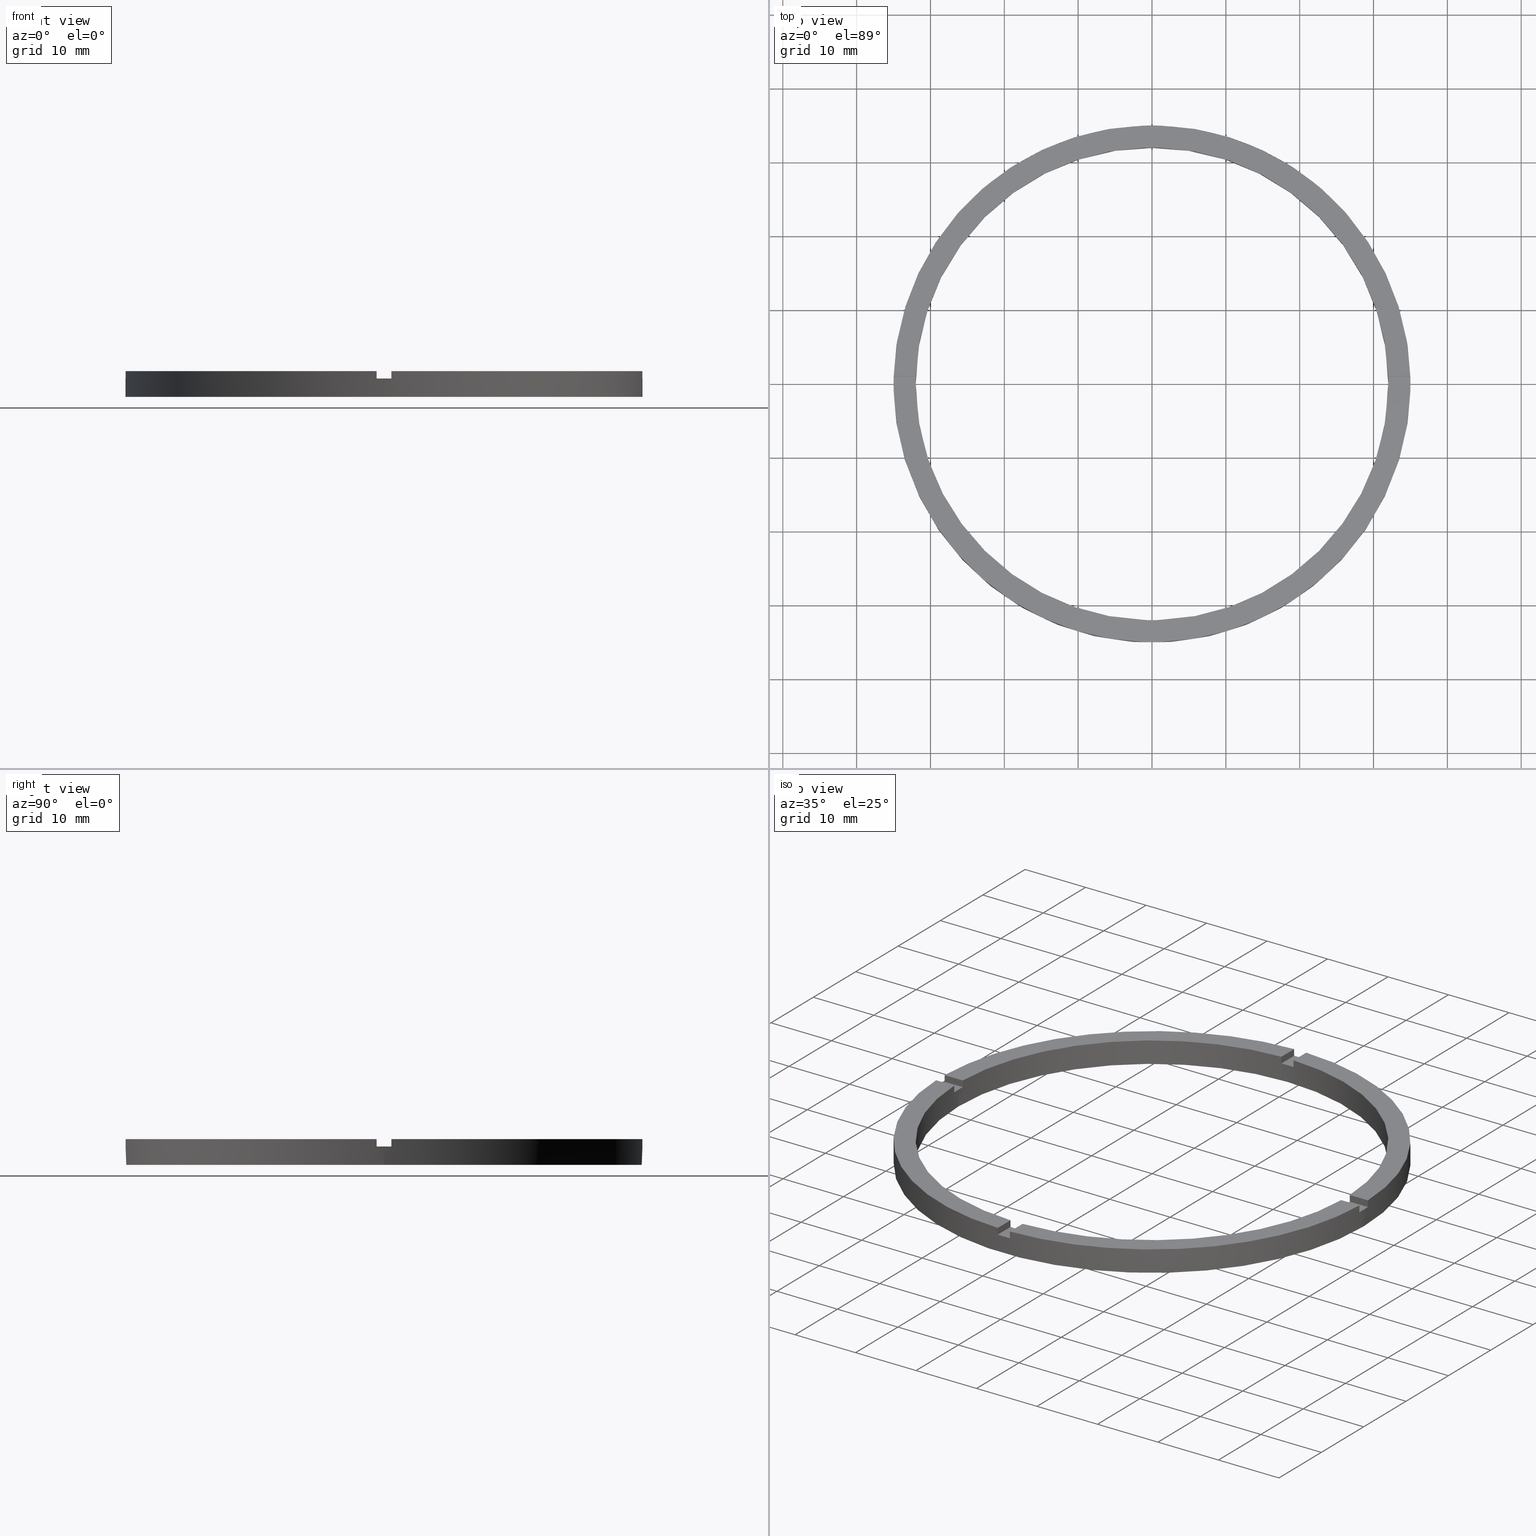
[diagram: canonical four-view strip — front | top / right | iso, engineering-drawing reading convention]
A machine part, canonical four-view strip (front | top / right | iso — engineering-drawing reading convention). The complete STEP part file that produces these views, byte-faithful:
ISO-10303-21;
HEADER;
FILE_DESCRIPTION (( 'STEP AP203' ),
    '1' );
FILE_NAME ('514144.step',
    '2024-12-26T02:41:47',
    ( 'MSI' ),
    ( '' ),
    'SwSTEP 2.0',
    'SolidWorks 2020',
    '' );
FILE_SCHEMA (( 'CONFIG_CONTROL_DESIGN' ));
ENDSEC;

DATA;
#1 = CARTESIAN_POINT ( 'NONE',  ( 0.000000000000000000, 0.000000000000000000, 2.500000000000000000 ) ) ;
#2 = CARTESIAN_POINT ( 'NONE',  ( -1.000000000000024869, 34.98571136907180801, 3.500000000000000000 ) ) ;
#3 = CARTESIAN_POINT ( 'NONE',  ( -1.000000000000024869, 31.98437118343894880, 3.500000000000000000 ) ) ;
#4 = AXIS2_PLACEMENT_3D ( 'NONE', #394, #365, #309 ) ;
#5 = PLANE ( 'NONE',  #614 ) ;
#6 = DIRECTION ( 'NONE',  ( 1.301042606982605074E-16, -1.000000000000000000, 0.000000000000000000 ) ) ;
#7 = ADVANCED_FACE ( 'NONE', ( #358 ), #517, .T. ) ;
#8 = CARTESIAN_POINT ( 'NONE',  ( 34.98571136907181511, 0.9999999999998421263, 3.500000000000000000 ) ) ;
#9 = DIRECTION ( 'NONE',  ( 0.000000000000000000, 0.000000000000000000, -1.000000000000000000 ) ) ;
#10 = CARTESIAN_POINT ( 'NONE',  ( 0.000000000000000000, 0.000000000000000000, 3.500000000000000000 ) ) ;
#11 = EDGE_CURVE ( 'NONE', #323, #635, #642, .T. ) ;
#12 = DIRECTION ( 'NONE',  ( 0.000000000000000000, 0.000000000000000000, 1.000000000000000000 ) ) ;
#13 = CARTESIAN_POINT ( 'NONE',  ( 0.000000000000000000, 0.000000000000000000, 2.500000000000000000 ) ) ;
#14 = CARTESIAN_POINT ( 'NONE',  ( 0.000000000000000000, 0.000000000000000000, 3.500000000000000000 ) ) ;
#15 = EDGE_CURVE ( 'NONE', #658, #338, #350, .T. ) ;
#16 = PLANE ( 'NONE',  #321 ) ;
#17 = CARTESIAN_POINT ( 'NONE',  ( 0.000000000000000000, 0.000000000000000000, 2.500000000000000000 ) ) ;
#18 = CC_DESIGN_APPROVAL ( #275, ( #297 ) ) ;
#19 = CARTESIAN_POINT ( 'NONE',  ( 25.00000000000000000, -1.000000000000158540, 2.500000000000000000 ) ) ;
#20 = AXIS2_PLACEMENT_3D ( 'NONE', #722, #774, #27 ) ;
#21 = EDGE_CURVE ( 'NONE', #344, #601, #122, .T. ) ;
#22 = DIRECTION ( 'NONE',  ( 0.000000000000000000, 0.000000000000000000, 1.000000000000000000 ) ) ;
#23 = APPROVAL_STATUS ( 'not_yet_approved' ) ;
#24 = DIRECTION ( 'NONE',  ( -0.000000000000000000, 0.000000000000000000, 1.000000000000000000 ) ) ;
#25 = DIRECTION ( 'NONE',  ( 0.000000000000000000, 0.000000000000000000, 1.000000000000000000 ) ) ;
#26 = AXIS2_PLACEMENT_3D ( 'NONE', #534, #580, #274 ) ;
#27 = DIRECTION ( 'NONE',  ( 0.000000000000000000, 0.000000000000000000, 1.000000000000000000 ) ) ;
#28 = CARTESIAN_POINT ( 'NONE',  ( 32.00000000000000000, 3.918869757271530263E-15, 3.500000000000000000 ) ) ;
#29 = ADVANCED_FACE ( 'NONE', ( #95 ), #16, .F. ) ;
#30 = CARTESIAN_POINT ( 'NONE',  ( 0.000000000000000000, 0.000000000000000000, 0.000000000000000000 ) ) ;
#31 = CARTESIAN_POINT ( 'NONE',  ( 34.98571136907180090, -1.000000000000157874, 2.500000000000000000 ) ) ;
#32 = CC_DESIGN_SECURITY_CLASSIFICATION ( #505, ( #483 ) ) ;
#33 = EDGE_CURVE ( 'NONE', #624, #428, #355, .T. ) ;
#34 = ADVANCED_FACE ( 'NONE', ( #620 ), #766, .T. ) ;
#35 = CARTESIAN_POINT ( 'NONE',  ( -1.000000000000160982, -31.98437118343894170, 3.500000000000000000 ) ) ;
#36 = CARTESIAN_POINT ( 'NONE',  ( 0.000000000000000000, 0.000000000000000000, 3.500000000000000000 ) ) ;
#37 = DIRECTION ( 'NONE',  ( 1.000000000000000000, 0.000000000000000000, 0.000000000000000000 ) ) ;
#38 = DIRECTION ( 'NONE',  ( -1.000000000000000000, -6.505213034913025371E-17, -0.000000000000000000 ) ) ;
#39 = EDGE_CURVE ( 'NONE', #315, #323, #101, .T. ) ;
#40 = CARTESIAN_POINT ( 'NONE',  ( -31.98437118343894880, 0.9999999999999737987, 3.500000000000000000 ) ) ;
#41 = DIRECTION ( 'NONE',  ( 0.000000000000000000, 0.000000000000000000, 1.000000000000000000 ) ) ;
#42 = CARTESIAN_POINT ( 'NONE',  ( -35.00000000000000711, 0.000000000000000000, 3.500000000000000000 ) ) ;
#43 = CARTESIAN_POINT ( 'NONE',  ( 0.000000000000000000, 0.000000000000000000, 3.500000000000000000 ) ) ;
#44 = FACE_OUTER_BOUND ( 'NONE', #585, .T. ) ;
#45 = AXIS2_PLACEMENT_3D ( 'NONE', #17, #240, #467 ) ;
#46 = DIRECTION ( 'NONE',  ( -0.000000000000000000, -0.000000000000000000, -1.000000000000000000 ) ) ;
#47 = AXIS2_PLACEMENT_3D ( 'NONE', #266, #521, #489 ) ;
#48 = VECTOR ( 'NONE', #130, 1000.000000000000000 ) ;
#49 = EDGE_CURVE ( 'NONE', #153, #156, #364, .T. ) ;
#50 = PERSON_AND_ORGANIZATION_ROLE ( 'design_owner' ) ;
#51 = PRODUCT_DEFINITION_SHAPE ( 'NONE', 'NONE',  #297 ) ;
#52 = CARTESIAN_POINT ( 'NONE',  ( 0.000000000000000000, 0.000000000000000000, 3.500000000000000000 ) ) ;
#53 = AXIS2_PLACEMENT_3D ( 'NONE', #716, #25, #166 ) ;
#54 = CARTESIAN_POINT ( 'NONE',  ( 0.000000000000000000, 0.000000000000000000, 3.500000000000000000 ) ) ;
#55 = PERSON_AND_ORGANIZATION_ROLE ( 'creator' ) ;
#56 = CARTESIAN_POINT ( 'NONE',  ( -1.000000000000024869, 34.98571136907180801, 3.500000000000000000 ) ) ;
#57 = ORIENTED_EDGE ( 'NONE', *, *, #226, .T. ) ;
#58 = CC_DESIGN_PERSON_AND_ORGANIZATION_ASSIGNMENT ( #472, #602, ( #505 ) ) ;
#59 = LINE ( 'NONE', #306, #591 ) ;
#60 = DIRECTION ( 'NONE',  ( 0.000000000000000000, 0.000000000000000000, 1.000000000000000000 ) ) ;
#61 = EDGE_CURVE ( 'NONE', #638, #110, #104, .T. ) ;
#62 = EDGE_LOOP ( 'NONE', ( #372, #604, #418, #90 ) ) ;
#63 = ORIENTED_EDGE ( 'NONE', *, *, #246, .T. ) ;
#64 = DIRECTION ( 'NONE',  ( 1.000000000000000000, 6.505213034913025371E-17, 0.000000000000000000 ) ) ;
#65 = VERTEX_POINT ( 'NONE', #288 ) ;
#66 = ORIENTED_EDGE ( 'NONE', *, *, #86, .F. ) ;
#67 = VERTEX_POINT ( 'NONE', #544 ) ;
#68 = EDGE_LOOP ( 'NONE', ( #592, #381, #132, #636 ) ) ;
#69 = AXIS2_PLACEMENT_3D ( 'NONE', #52, #279, #566 ) ;
#70 = CARTESIAN_POINT ( 'NONE',  ( 0.000000000000000000, 0.000000000000000000, 3.500000000000000000 ) ) ;
#71 = EDGE_LOOP ( 'NONE', ( #367, #75, #124, #87 ) ) ;
#72 = EDGE_CURVE ( 'NONE', #119, #594, #628, .T. ) ;
#73 = CIRCLE ( 'NONE', #150, 35.00000000000000711 ) ;
#74 = PLANE ( 'NONE',  #746 ) ;
#75 = ORIENTED_EDGE ( 'NONE', *, *, #21, .T. ) ;
#76 = PLANE ( 'NONE',  #399 ) ;
#77 = ORIENTED_EDGE ( 'NONE', *, *, #184, .F. ) ;
#78 = ORIENTED_EDGE ( 'NONE', *, *, #280, .T. ) ;
#79 = ORIENTED_EDGE ( 'NONE', *, *, #252, .T. ) ;
#80 = AXIS2_PLACEMENT_3D ( 'NONE', #738, #392, #308 ) ;
#81 = EDGE_LOOP ( 'NONE', ( #683, #627, #336, #376, #688, #674, #634, #639, #371, #362, #383, #586 ) ) ;
#82 = DIRECTION ( 'NONE',  ( -0.000000000000000000, -0.000000000000000000, -1.000000000000000000 ) ) ;
#83 = ORIENTED_EDGE ( 'NONE', *, *, #762, .F. ) ;
#84 = ADVANCED_FACE ( 'NONE', ( #633 ), #678, .F. ) ;
#85 = MANIFOLD_SOLID_BREP ( '�г�-����1', #148 ) ;
#86 = EDGE_CURVE ( 'NONE', #92, #411, #143, .T. ) ;
#87 = ORIENTED_EDGE ( 'NONE', *, *, #587, .F. ) ;
#88 = ORIENTED_EDGE ( 'NONE', *, *, #135, .F. ) ;
#89 = CARTESIAN_POINT ( 'NONE',  ( 0.9999999999998382405, -25.00000000000018829, 3.500000000000000000 ) ) ;
#90 = ORIENTED_EDGE ( 'NONE', *, *, #310, .T. ) ;
#91 = EDGE_LOOP ( 'NONE', ( #363, #625, #152, #66, #342, #416, #420, #330, #677, #157, #108, #370 ) ) ;
#92 = VERTEX_POINT ( 'NONE', #213 ) ;
#93 = ORIENTED_EDGE ( 'NONE', *, *, #488, .F. ) ;
#94 = ORIENTED_EDGE ( 'NONE', *, *, #506, .T. ) ;
#95 = FACE_OUTER_BOUND ( 'NONE', #686, .T. ) ;
#96 =( LENGTH_UNIT ( ) NAMED_UNIT ( * ) SI_UNIT ( .MILLI., .METRE. ) );
#97 = ORIENTED_EDGE ( 'NONE', *, *, #543, .F. ) ;
#98 = ORIENTED_EDGE ( 'NONE', *, *, #257, .F. ) ;
#99 = EDGE_LOOP ( 'NONE', ( #136, #395, #685, #689 ) ) ;
#100 = AXIS2_PLACEMENT_3D ( 'NONE', #535, #431, #37 ) ;
#101 = LINE ( 'NONE', #203, #623 ) ;
#102 = ORIENTED_EDGE ( 'NONE', *, *, #533, .F. ) ;
#103 = CARTESIAN_POINT ( 'NONE',  ( 31.98437118343894170, -1.000000000000157874, 3.500000000000000000 ) ) ;
#104 = LINE ( 'NONE', #56, #109 ) ;
#105 = VERTEX_POINT ( 'NONE', #290 ) ;
#106 = ORIENTED_EDGE ( 'NONE', *, *, #522, .F. ) ;
#107 = CARTESIAN_POINT ( 'NONE',  ( 0.9999999999998395728, -34.98571136907181511, 2.500000000000000000 ) ) ;
#108 = ORIENTED_EDGE ( 'NONE', *, *, #265, .F. ) ;
#109 = VECTOR ( 'NONE', #575, 1000.000000000000000 ) ;
#110 = VERTEX_POINT ( 'NONE', #759 ) ;
#111 = VECTOR ( 'NONE', #752, 1000.000000000000000 ) ;
#112 = VERTEX_POINT ( 'NONE', #35 ) ;
#113 = ORIENTED_EDGE ( 'NONE', *, *, #616, .T. ) ;
#114 = ORIENTED_EDGE ( 'NONE', *, *, #270, .T. ) ;
#115 = DIRECTION ( 'NONE',  ( 0.000000000000000000, 0.000000000000000000, 1.000000000000000000 ) ) ;
#116 = ORIENTED_EDGE ( 'NONE', *, *, #568, .F. ) ;
#117 = ORIENTED_EDGE ( 'NONE', *, *, #587, .T. ) ;
#118 = EDGE_CURVE ( 'NONE', #126, #411, #664, .T. ) ;
#119 = VERTEX_POINT ( 'NONE', #525 ) ;
#120 = ORIENTED_EDGE ( 'NONE', *, *, #212, .F. ) ;
#121 = DIRECTION ( 'NONE',  ( 0.000000000000000000, 0.000000000000000000, 1.000000000000000000 ) ) ;
#122 = LINE ( 'NONE', #515, #615 ) ;
#123 = ORIENTED_EDGE ( 'NONE', *, *, #568, .T. ) ;
#124 = ORIENTED_EDGE ( 'NONE', *, *, #526, .F. ) ;
#125 = LINE ( 'NONE', #778, #388 ) ;
#126 = VERTEX_POINT ( 'NONE', #317 ) ;
#127 = DIRECTION ( 'NONE',  ( -0.000000000000000000, -0.000000000000000000, -1.000000000000000000 ) ) ;
#128 = CIRCLE ( 'NONE', #681, 35.00000000000000711 ) ;
#129 = EDGE_LOOP ( 'NONE', ( #374, #116, #406, #646 ) ) ;
#130 = DIRECTION ( 'NONE',  ( 0.000000000000000000, 1.000000000000000000, 0.000000000000000000 ) ) ;
#131 = VECTOR ( 'NONE', #267, 1000.000000000000000 ) ;
#132 = ORIENTED_EDGE ( 'NONE', *, *, #276, .F. ) ;
#133 = APPROVAL ( #480, 'δָ��' ) ;
#134 = LINE ( 'NONE', #529, #404 ) ;
#135 = EDGE_CURVE ( 'NONE', #411, #126, #128, .T. ) ;
#136 = ORIENTED_EDGE ( 'NONE', *, *, #596, .F. ) ;
#137 = EDGE_CURVE ( 'NONE', #638, #354, #125, .T. ) ;
#138 = FACE_OUTER_BOUND ( 'NONE', #574, .T. ) ;
#139 = ORIENTED_EDGE ( 'NONE', *, *, #61, .F. ) ;
#140 = CARTESIAN_POINT ( 'NONE',  ( 0.9999999999998391287, -31.98437118343895591, 3.500000000000000000 ) ) ;
#141 = CIRCLE ( 'NONE', #80, 35.00000000000000711 ) ;
#142 = ORIENTED_EDGE ( 'NONE', *, *, #522, .T. ) ;
#143 = LINE ( 'NONE', #42, #654 ) ;
#144 = ORIENTED_EDGE ( 'NONE', *, *, #526, .T. ) ;
#145 = VECTOR ( 'NONE', #64, 1000.000000000000000 ) ;
#146 = ORIENTED_EDGE ( 'NONE', *, *, #384, .F. ) ;
#147 = DIRECTION ( 'NONE',  ( 1.000000000000000000, 0.000000000000000000, -0.000000000000000000 ) ) ;
#148 = CLOSED_SHELL ( 'NONE', ( #775, #570, #528, #325, #34, #7, #177, #630, #187, #739, #29, #509, #563, #244, #314, #538, #197, #339, #271, #84, #424 ) ) ;
#149 = CARTESIAN_POINT ( 'NONE',  ( 0.9999999999998382405, -25.00000000000018829, 2.500000000000000000 ) ) ;
#150 = AXIS2_PLACEMENT_3D ( 'NONE', #618, #714, #772 ) ;
#151 = EDGE_LOOP ( 'NONE', ( #341, #83, #432, #146, #117, #603, #114, #375, #113, #434, #353, #357 ) ) ;
#152 = ORIENTED_EDGE ( 'NONE', *, *, #118, .T. ) ;
#153 = VERTEX_POINT ( 'NONE', #173 ) ;
#154 = DIRECTION ( 'NONE',  ( 1.000000000000000000, 0.000000000000000000, 0.000000000000000000 ) ) ;
#155 = ORIENTED_EDGE ( 'NONE', *, *, #33, .T. ) ;
#156 = VERTEX_POINT ( 'NONE', #492 ) ;
#157 = ORIENTED_EDGE ( 'NONE', *, *, #488, .T. ) ;
#158 = CARTESIAN_POINT ( 'NONE',  ( -32.00000000000000000, 0.000000000000000000, 3.500000000000000000 ) ) ;
#159 = ORIENTED_EDGE ( 'NONE', *, *, #754, .T. ) ;
#160 = CARTESIAN_POINT ( 'NONE',  ( -25.00000000000019540, -1.000000000000024869, 3.500000000000000000 ) ) ;
#161 = EDGE_CURVE ( 'NONE', #643, #427, #134, .T. ) ;
#162 = ORIENTED_EDGE ( 'NONE', *, *, #33, .F. ) ;
#163 = ORIENTED_EDGE ( 'NONE', *, *, #347, .T. ) ;
#164 = ORIENTED_EDGE ( 'NONE', *, *, #39, .F. ) ;
#165 = CARTESIAN_POINT ( 'NONE',  ( -1.000000000000160538, -34.98571136907180090, 3.500000000000000000 ) ) ;
#166 = DIRECTION ( 'NONE',  ( 1.000000000000000000, 0.000000000000000000, 0.000000000000000000 ) ) ;
#167 = ORIENTED_EDGE ( 'NONE', *, *, #578, .F. ) ;
#168 = ORIENTED_EDGE ( 'NONE', *, *, #616, .F. ) ;
#169 = LINE ( 'NONE', #206, #439 ) ;
#170 = DIRECTION ( 'NONE',  ( 1.951563910473907735E-16, -1.000000000000000000, 0.000000000000000000 ) ) ;
#171 = LINE ( 'NONE', #768, #178 ) ;
#172 = VECTOR ( 'NONE', #504, 1000.000000000000000 ) ;
#173 = CARTESIAN_POINT ( 'NONE',  ( -32.00000000000000000, 0.000000000000000000, 2.500000000000000000 ) ) ;
#174 = FACE_OUTER_BOUND ( 'NONE', #68, .T. ) ;
#175 = DIRECTION ( 'NONE',  ( -1.301042606982605074E-16, 1.000000000000000000, -0.000000000000000000 ) ) ;
#176 = VECTOR ( 'NONE', #22, 1000.000000000000000 ) ;
#177 = ADVANCED_FACE ( 'NONE', ( #138, #407 ), #499, .F. ) ;
#178 = VECTOR ( 'NONE', #741, 1000.000000000000000 ) ;
#179 = LOCAL_TIME ( 10, 41, 47.00000000000000000, #708 ) ;
#180 = AXIS2_PLACEMENT_3D ( 'NONE', #220, #261, #694 ) ;
#181 = LINE ( 'NONE', #320, #452 ) ;
#182 = CARTESIAN_POINT ( 'NONE',  ( 0.000000000000000000, 0.000000000000000000, 0.000000000000000000 ) ) ;
#183 = AXIS2_PLACEMENT_3D ( 'NONE', #442, #115, #278 ) ;
#184 = EDGE_CURVE ( 'NONE', #315, #601, #396, .T. ) ;
#185 = LINE ( 'NONE', #160, #696 ) ;
#186 = VECTOR ( 'NONE', #573, 1000.000000000000000 ) ;
#187 = ADVANCED_FACE ( 'NONE', ( #657 ), #647, .F. ) ;
#188 = CYLINDRICAL_SURFACE ( 'NONE', #513, 35.00000000000000711 ) ;
#189 = CARTESIAN_POINT ( 'NONE',  ( -35.00000000000000711, 0.000000000000000000, 0.000000000000000000 ) ) ;
#190 = VECTOR ( 'NONE', #750, 1000.000000000000000 ) ;
#191 = CARTESIAN_POINT ( 'NONE',  ( 32.00000000000000000, 3.918869757271530263E-15, 0.000000000000000000 ) ) ;
#192 = VECTOR ( 'NONE', #302, 1000.000000000000000 ) ;
#193 = LINE ( 'NONE', #28, #192 ) ;
#194 = SHAPE_DEFINITION_REPRESENTATION ( #51, #502 ) ;
#195 = FACE_OUTER_BOUND ( 'NONE', #129, .T. ) ;
#196 = CARTESIAN_POINT ( 'NONE',  ( 31.98437118343894170, -1.000000000000157874, 2.500000000000000000 ) ) ;
#197 = ADVANCED_FACE ( 'NONE', ( #390 ), #475, .F. ) ;
#198 = VECTOR ( 'NONE', #549, 1000.000000000000000 ) ;
#199 = LOCAL_TIME ( 10, 41, 47.00000000000000000, #205 ) ;
#200 = CARTESIAN_POINT ( 'NONE',  ( -31.98437118343894880, 0.9999999999999737987, 3.500000000000000000 ) ) ;
#201 = LINE ( 'NONE', #149, #709 ) ;
#202 = ORGANIZATION ( 'δָ��', 'δָ��', '' ) ;
#203 = CARTESIAN_POINT ( 'NONE',  ( -1.000000000000161871, -25.00000000000018829, 2.500000000000000000 ) ) ;
#204 = CIRCLE ( 'NONE', #552, 32.00000000000000000 ) ;
#205 = COORDINATED_UNIVERSAL_TIME_OFFSET ( 8, 0, .AHEAD. ) ;
#206 = CARTESIAN_POINT ( 'NONE',  ( -1.000000000000161871, -25.00000000000018829, 3.500000000000000000 ) ) ;
#207 = CIRCLE ( 'NONE', #558, 35.00000000000000711 ) ;
#208 = CALENDAR_DATE ( 2024, 26, 12 ) ;
#209 = CIRCLE ( 'NONE', #26, 35.00000000000000711 ) ;
#210 = DATE_AND_TIME ( #751, #199 ) ;
#211 = VECTOR ( 'NONE', #650, 1000.000000000000000 ) ;
#212 = EDGE_CURVE ( 'NONE', #354, #428, #660, .T. ) ;
#213 = CARTESIAN_POINT ( 'NONE',  ( -35.00000000000000711, 0.000000000000000000, 2.500000000000000000 ) ) ;
#214 = CARTESIAN_POINT ( 'NONE',  ( 0.9999999999999751310, 31.98437118343894880, 3.500000000000000000 ) ) ;
#215 = PRODUCT ( '514144', '514144', '', ( #764 ) ) ;
#216 = CYLINDRICAL_SURFACE ( 'NONE', #519, 32.00000000000000000 ) ;
#217 = PERSON_AND_ORGANIZATION ( #398, #202 ) ;
#218 = PERSON_AND_ORGANIZATION ( #398, #202 ) ;
#219 = APPROVAL_PERSON_ORGANIZATION ( #218, #691, #293 ) ;
#220 = CARTESIAN_POINT ( 'NONE',  ( 0.000000000000000000, 0.000000000000000000, 2.500000000000000000 ) ) ;
#221 = CALENDAR_DATE ( 2024, 26, 12 ) ;
#222 = DIRECTION ( 'NONE',  ( -6.505213034913025371E-17, 1.000000000000000000, 0.000000000000000000 ) ) ;
#223 = PERSON_AND_ORGANIZATION ( #398, #202 ) ;
#224 = APPROVAL_DATE_TIME ( #493, #691 ) ;
#225 = CC_DESIGN_PERSON_AND_ORGANIZATION_ASSIGNMENT ( #478, #368, ( #483 ) ) ;
#226 = EDGE_CURVE ( 'NONE', #391, #427, #141, .T. ) ;
#227 = DIRECTION ( 'NONE',  ( 1.301042606982605074E-16, -1.000000000000000000, 0.000000000000000000 ) ) ;
#228 = DATE_AND_TIME ( #230, #179 ) ;
#229 = DIRECTION ( 'NONE',  ( 1.000000000000000000, 0.000000000000000000, 0.000000000000000000 ) ) ;
#230 = CALENDAR_DATE ( 2024, 26, 12 ) ;
#231 = CARTESIAN_POINT ( 'NONE',  ( 0.000000000000000000, 0.000000000000000000, 3.500000000000000000 ) ) ;
#232 = CIRCLE ( 'NONE', #760, 35.00000000000000711 ) ;
#233 = DIRECTION ( 'NONE',  ( 1.000000000000000000, 0.000000000000000000, 0.000000000000000000 ) ) ;
#234 =( GEOMETRIC_REPRESENTATION_CONTEXT ( 3 ) GLOBAL_UNCERTAINTY_ASSIGNED_CONTEXT ( ( #419 ) ) GLOBAL_UNIT_ASSIGNED_CONTEXT ( ( #96, #562, #641 ) ) REPRESENTATION_CONTEXT ( 'NONE', 'WORKASPACE' ) );
#235 = AXIS2_PLACEMENT_3D ( 'NONE', #182, #273, #497 ) ;
#236 = CARTESIAN_POINT ( 'NONE',  ( 25.00000000000000000, -1.000000000000158540, 2.500000000000000000 ) ) ;
#237 = DIRECTION ( 'NONE',  ( 0.000000000000000000, 0.000000000000000000, 1.000000000000000000 ) ) ;
#238 = DIRECTION ( 'NONE',  ( 0.000000000000000000, 0.000000000000000000, 1.000000000000000000 ) ) ;
#239 = CC_DESIGN_DATE_AND_TIME_ASSIGNMENT ( #744, #473, ( #505 ) ) ;
#240 = DIRECTION ( 'NONE',  ( 0.000000000000000000, -0.000000000000000000, 1.000000000000000000 ) ) ;
#241 = AXIS2_PLACEMENT_3D ( 'NONE', #559, #237, #710 ) ;
#242 = CARTESIAN_POINT ( 'NONE',  ( -25.00000000000019540, 0.9999999999999751310, 3.500000000000000000 ) ) ;
#243 = CARTESIAN_POINT ( 'NONE',  ( 0.9999999999999751310, 31.98437118343894880, 2.500000000000000000 ) ) ;
#244 = ADVANCED_FACE ( 'NONE', ( #402 ), #74, .F. ) ;
#245 = CARTESIAN_POINT ( 'NONE',  ( 0.000000000000000000, 0.000000000000000000, 2.500000000000000000 ) ) ;
#246 = EDGE_CURVE ( 'NONE', #366, #656, #662, .T. ) ;
#247 = CARTESIAN_POINT ( 'NONE',  ( -31.98437118343894880, -1.000000000000026201, 3.500000000000000000 ) ) ;
#248 = DIRECTION ( 'NONE',  ( 0.000000000000000000, 0.000000000000000000, 1.000000000000000000 ) ) ;
#249 = CARTESIAN_POINT ( 'NONE',  ( 32.00000000000000000, 3.918869757271530263E-15, 2.500000000000000000 ) ) ;
#250 = AXIS2_PLACEMENT_3D ( 'NONE', #43, #248, #454 ) ;
#251 = CARTESIAN_POINT ( 'NONE',  ( -34.98571136907180801, -1.000000000000026645, 3.500000000000000000 ) ) ;
#252 = EDGE_CURVE ( 'NONE', #153, #338, #385, .T. ) ;
#253 = CARTESIAN_POINT ( 'NONE',  ( -25.00000000000019540, -1.000000000000024869, 2.500000000000000000 ) ) ;
#254 = DIRECTION ( 'NONE',  ( 1.000000000000000000, 0.000000000000000000, 0.000000000000000000 ) ) ;
#255 = CARTESIAN_POINT ( 'NONE',  ( 35.00000000000000711, 4.286263797015737285E-15, 3.500000000000000000 ) ) ;
#256 = CARTESIAN_POINT ( 'NONE',  ( -1.000000000000160538, -34.98571136907180090, 2.500000000000000000 ) ) ;
#257 = EDGE_CURVE ( 'NONE', #326, #430, #59, .T. ) ;
#258 = CARTESIAN_POINT ( 'NONE',  ( 0.9999999999999751310, 25.00000000000000711, 2.500000000000000000 ) ) ;
#259 = DIRECTION ( 'NONE',  ( 0.000000000000000000, 0.000000000000000000, 1.000000000000000000 ) ) ;
#260 = AXIS2_PLACEMENT_3D ( 'NONE', #236, #556, #637 ) ;
#261 = DIRECTION ( 'NONE',  ( -0.000000000000000000, 0.000000000000000000, 1.000000000000000000 ) ) ;
#262 = DIRECTION ( 'NONE',  ( 0.000000000000000000, 0.000000000000000000, 1.000000000000000000 ) ) ;
#263 = PERSON_AND_ORGANIZATION_ROLE ( 'creator' ) ;
#264 = DIRECTION ( 'NONE',  ( -0.000000000000000000, -0.000000000000000000, -1.000000000000000000 ) ) ;
#265 = EDGE_CURVE ( 'NONE', #643, #594, #73, .T. ) ;
#266 = CARTESIAN_POINT ( 'NONE',  ( 0.000000000000000000, 0.000000000000000000, 2.500000000000000000 ) ) ;
#267 = DIRECTION ( 'NONE',  ( -0.000000000000000000, -0.000000000000000000, -1.000000000000000000 ) ) ;
#268 = DIRECTION ( 'NONE',  ( 0.000000000000000000, 0.000000000000000000, 1.000000000000000000 ) ) ;
#269 = AXIS2_PLACEMENT_3D ( 'NONE', #258, #687, #9 ) ;
#270 = EDGE_CURVE ( 'NONE', #323, #389, #589, .T. ) ;
#271 = ADVANCED_FACE ( 'NONE', ( #44 ), #401, .F. ) ;
#272 = PLANE ( 'NONE',  #47 ) ;
#273 = DIRECTION ( 'NONE',  ( 0.000000000000000000, 0.000000000000000000, 1.000000000000000000 ) ) ;
#274 = DIRECTION ( 'NONE',  ( 1.000000000000000000, 0.000000000000000000, 0.000000000000000000 ) ) ;
#275 = APPROVAL ( #23, 'δָ��' ) ;
#276 = EDGE_CURVE ( 'NONE', #332, #430, #329, .T. ) ;
#277 = DIRECTION ( 'NONE',  ( 0.000000000000000000, 0.000000000000000000, 1.000000000000000000 ) ) ;
#278 = DIRECTION ( 'NONE',  ( 1.000000000000000000, 0.000000000000000000, 0.000000000000000000 ) ) ;
#279 = DIRECTION ( 'NONE',  ( 0.000000000000000000, 0.000000000000000000, 1.000000000000000000 ) ) ;
#280 = EDGE_CURVE ( 'NONE', #624, #408, #301, .T. ) ;
#281 = DIRECTION ( 'NONE',  ( -1.000000000000000000, 0.000000000000000000, 0.000000000000000000 ) ) ;
#282 = CARTESIAN_POINT ( 'NONE',  ( 0.000000000000000000, 0.000000000000000000, 0.000000000000000000 ) ) ;
#283 = CARTESIAN_POINT ( 'NONE',  ( -1.000000000000024869, 25.00000000000000711, 2.500000000000000000 ) ) ;
#284 = CARTESIAN_POINT ( 'NONE',  ( 0.000000000000000000, 0.000000000000000000, 2.500000000000000000 ) ) ;
#285 = PRODUCT_RELATED_PRODUCT_CATEGORY ( 'detail', '', ( #215 ) ) ;
#286 = EDGE_CURVE ( 'NONE', #624, #119, #303, .T. ) ;
#287 = CARTESIAN_POINT ( 'NONE',  ( 25.00000000000000000, 0.9999999999998414602, 3.500000000000000000 ) ) ;
#288 = CARTESIAN_POINT ( 'NONE',  ( 31.98437118343895591, 0.9999999999998421263, 3.500000000000000000 ) ) ;
#289 = CARTESIAN_POINT ( 'NONE',  ( -25.00000000000019540, 0.9999999999999751310, 2.500000000000000000 ) ) ;
#290 = CARTESIAN_POINT ( 'NONE',  ( -31.98437118343894880, 0.9999999999999737987, 2.500000000000000000 ) ) ;
#291 = CC_DESIGN_DATE_AND_TIME_ASSIGNMENT ( #495, #697, ( #297 ) ) ;
#292 = EDGE_CURVE ( 'NONE', #112, #389, #169, .T. ) ;
#293 = APPROVAL_ROLE ( '' ) ;
#294 = DIRECTION ( 'NONE',  ( -0.000000000000000000, -0.000000000000000000, -1.000000000000000000 ) ) ;
#295 = APPROVAL_ROLE ( '' ) ;
#296 = CC_DESIGN_PERSON_AND_ORGANIZATION_ASSIGNMENT ( #217, #263, ( #483 ) ) ;
#297 = PRODUCT_DEFINITION ( 'δ֪', '', #483, #771 ) ;
#298 = CARTESIAN_POINT ( 'NONE',  ( 31.98437118343895591, 0.9999999999998421263, 2.500000000000000000 ) ) ;
#299 = APPLICATION_PROTOCOL_DEFINITION ( 'international standard', 'config_control_design', 1994, #304 ) ;
#300 = CARTESIAN_POINT ( 'NONE',  ( 0.000000000000000000, 0.000000000000000000, 0.000000000000000000 ) ) ;
#301 = LINE ( 'NONE', #410, #48 ) ;
#302 = DIRECTION ( 'NONE',  ( -0.000000000000000000, -0.000000000000000000, -1.000000000000000000 ) ) ;
#303 = LINE ( 'NONE', #214, #725 ) ;
#304 = APPLICATION_CONTEXT ( 'configuration controlled 3d designs of mechanical parts and assemblies' ) ;
#305 = EDGE_CURVE ( 'NONE', #105, #153, #466, .T. ) ;
#306 = CARTESIAN_POINT ( 'NONE',  ( -34.98571136907180801, 0.9999999999999733546, 3.500000000000000000 ) ) ;
#307 = DIRECTION ( 'NONE',  ( -1.000000000000000000, 0.000000000000000000, 0.000000000000000000 ) ) ;
#308 = DIRECTION ( 'NONE',  ( 1.000000000000000000, 0.000000000000000000, 0.000000000000000000 ) ) ;
#309 = DIRECTION ( 'NONE',  ( -1.301042606982605074E-16, 1.000000000000000000, 0.000000000000000000 ) ) ;
#310 = EDGE_CURVE ( 'NONE', #413, #389, #437, .T. ) ;
#311 = EDGE_LOOP ( 'NONE', ( #605, #94, #611, #168 ) ) ;
#312 = DIRECTION ( 'NONE',  ( -1.000000000000000000, -1.951563910473907735E-16, 0.000000000000000000 ) ) ;
#313 = CARTESIAN_POINT ( 'NONE',  ( 0.000000000000000000, 0.000000000000000000, 3.500000000000000000 ) ) ;
#314 = ADVANCED_FACE ( 'NONE', ( #703 ), #356, .T. ) ;
#315 = VERTEX_POINT ( 'NONE', #537 ) ;
#316 = ORIENTED_EDGE ( 'NONE', *, *, #767, .T. ) ;
#317 = CARTESIAN_POINT ( 'NONE',  ( 35.00000000000000711, 4.286263797015737285E-15, 0.000000000000000000 ) ) ;
#318 = ORIENTED_EDGE ( 'NONE', *, *, #11, .T. ) ;
#319 = ORIENTED_EDGE ( 'NONE', *, *, #137, .T. ) ;
#320 = CARTESIAN_POINT ( 'NONE',  ( -34.98571136907180801, -1.000000000000026645, 3.500000000000000000 ) ) ;
#321 = AXIS2_PLACEMENT_3D ( 'NONE', #453, #352, #582 ) ;
#322 = AXIS2_PLACEMENT_3D ( 'NONE', #245, #24, #380 ) ;
#323 = VERTEX_POINT ( 'NONE', #256 ) ;
#324 = EDGE_CURVE ( 'NONE', #344, #409, #721, .T. ) ;
#325 = ADVANCED_FACE ( 'NONE', ( #195 ), #516, .T. ) ;
#326 = VERTEX_POINT ( 'NONE', #438 ) ;
#327 = DIRECTION ( 'NONE',  ( -1.000000000000000000, -1.951563910473907735E-16, 0.000000000000000000 ) ) ;
#328 = ORIENTED_EDGE ( 'NONE', *, *, #72, .T. ) ;
#329 = LINE ( 'NONE', #242, #331 ) ;
#330 = ORIENTED_EDGE ( 'NONE', *, *, #61, .T. ) ;
#331 = VECTOR ( 'NONE', #312, 1000.000000000000000 ) ;
#332 = VERTEX_POINT ( 'NONE', #40 ) ;
#333 = CARTESIAN_POINT ( 'NONE',  ( 0.000000000000000000, 0.000000000000000000, 2.500000000000000000 ) ) ;
#334 = AXIS2_PLACEMENT_3D ( 'NONE', #333, #682, #655 ) ;
#335 = APPLICATION_PROTOCOL_DEFINITION ( 'international standard', 'config_control_design', 1994, #747 ) ;
#336 = ORIENTED_EDGE ( 'NONE', *, *, #415, .F. ) ;
#337 = ORIENTED_EDGE ( 'NONE', *, *, #286, .F. ) ;
#338 = VERTEX_POINT ( 'NONE', #546 ) ;
#339 = ADVANCED_FACE ( 'NONE', ( #468 ), #761, .T. ) ;
#340 = DIRECTION ( 'NONE',  ( -0.000000000000000000, -0.000000000000000000, -1.000000000000000000 ) ) ;
#341 = ORIENTED_EDGE ( 'NONE', *, *, #684, .F. ) ;
#342 = ORIENTED_EDGE ( 'NONE', *, *, #561, .F. ) ;
#343 = EDGE_LOOP ( 'NONE', ( #351, #57, #692, #97, #167, #63 ) ) ;
#344 = VERTEX_POINT ( 'NONE', #140 ) ;
#345 = CARTESIAN_POINT ( 'NONE',  ( 0.9999999999999751310, 34.98571136907180801, 2.500000000000000000 ) ) ;
#346 = ORIENTED_EDGE ( 'NONE', *, *, #15, .T. ) ;
#347 = EDGE_CURVE ( 'NONE', #105, #326, #450, .T. ) ;
#348 = EDGE_LOOP ( 'NONE', ( #164, #387, #397, #666 ) ) ;
#349 = ORIENTED_EDGE ( 'NONE', *, *, #735, .T. ) ;
#350 = CIRCLE ( 'NONE', #782, 32.00000000000000000 ) ;
#351 = ORIENTED_EDGE ( 'NONE', *, *, #762, .T. ) ;
#352 = DIRECTION ( 'NONE',  ( -1.951563910473907735E-16, 1.000000000000000000, 0.000000000000000000 ) ) ;
#353 = ORIENTED_EDGE ( 'NONE', *, *, #86, .T. ) ;
#354 = VERTEX_POINT ( 'NONE', #3 ) ;
#355 = CIRCLE ( 'NONE', #426, 32.00000000000000000 ) ;
#356 = PLANE ( 'NONE',  #334 ) ;
#357 = ORIENTED_EDGE ( 'NONE', *, *, #135, .T. ) ;
#358 = FACE_OUTER_BOUND ( 'NONE', #62, .T. ) ;
#359 = ORIENTED_EDGE ( 'NONE', *, *, #754, .F. ) ;
#360 = VERTEX_POINT ( 'NONE', #501 ) ;
#361 = CARTESIAN_POINT ( 'NONE',  ( 0.000000000000000000, 0.000000000000000000, 3.500000000000000000 ) ) ;
#362 = ORIENTED_EDGE ( 'NONE', *, *, #21, .F. ) ;
#363 = ORIENTED_EDGE ( 'NONE', *, *, #226, .F. ) ;
#364 = CIRCLE ( 'NONE', #487, 32.00000000000000000 ) ;
#365 = DIRECTION ( 'NONE',  ( 1.000000000000000000, 1.301042606982605074E-16, 0.000000000000000000 ) ) ;
#366 = VERTEX_POINT ( 'NONE', #196 ) ;
#367 = ORIENTED_EDGE ( 'NONE', *, *, #777, .T. ) ;
#368 = PERSON_AND_ORGANIZATION_ROLE ( 'design_supplier' ) ;
#369 = ORIENTED_EDGE ( 'NONE', *, *, #415, .T. ) ;
#370 = ORIENTED_EDGE ( 'NONE', *, *, #161, .T. ) ;
#371 = ORIENTED_EDGE ( 'NONE', *, *, #184, .T. ) ;
#372 = ORIENTED_EDGE ( 'NONE', *, *, #292, .F. ) ;
#373 = CARTESIAN_POINT ( 'NONE',  ( 0.000000000000000000, 0.000000000000000000, 2.500000000000000000 ) ) ;
#374 = ORIENTED_EDGE ( 'NONE', *, *, #72, .F. ) ;
#375 = ORIENTED_EDGE ( 'NONE', *, *, #310, .F. ) ;
#376 = ORIENTED_EDGE ( 'NONE', *, *, #252, .F. ) ;
#377 = ORIENTED_EDGE ( 'NONE', *, *, #305, .F. ) ;
#378 = ORIENTED_EDGE ( 'NONE', *, *, #246, .F. ) ;
#379 = AXIS2_PLACEMENT_3D ( 'NONE', #70, #532, #523 ) ;
#380 = DIRECTION ( 'NONE',  ( 1.000000000000000000, 0.000000000000000000, 0.000000000000000000 ) ) ;
#381 = ORIENTED_EDGE ( 'NONE', *, *, #783, .T. ) ;
#382 = AXIS2_PLACEMENT_3D ( 'NONE', #10, #121, #665 ) ;
#383 = ORIENTED_EDGE ( 'NONE', *, *, #324, .T. ) ;
#384 = EDGE_CURVE ( 'NONE', #360, #422, #727, .T. ) ;
#385 = LINE ( 'NONE', #158, #131 ) ;
#386 = DIRECTION ( 'NONE',  ( 1.000000000000000000, 0.000000000000000000, 0.000000000000000000 ) ) ;
#387 = ORIENTED_EDGE ( 'NONE', *, *, #554, .T. ) ;
#388 = VECTOR ( 'NONE', #417, 1000.000000000000000 ) ;
#389 = VERTEX_POINT ( 'NONE', #545 ) ;
#390 = FACE_OUTER_BOUND ( 'NONE', #598, .T. ) ;
#391 = VERTEX_POINT ( 'NONE', #541 ) ;
#392 = DIRECTION ( 'NONE',  ( 0.000000000000000000, 0.000000000000000000, 1.000000000000000000 ) ) ;
#393 = ORIENTED_EDGE ( 'NONE', *, *, #49, .F. ) ;
#394 = CARTESIAN_POINT ( 'NONE',  ( 0.9999999999998382405, -25.00000000000018829, 2.500000000000000000 ) ) ;
#395 = ORIENTED_EDGE ( 'NONE', *, *, #324, .F. ) ;
#396 = CIRCLE ( 'NONE', #322, 32.00000000000000000 ) ;
#397 = ORIENTED_EDGE ( 'NONE', *, *, #292, .T. ) ;
#398 = PERSON ( 'δָ��', 'δָ��', 'δָ��', ('δָ��'), ('δָ��'), ('δָ��') ) ;
#399 = AXIS2_PLACEMENT_3D ( 'NONE', #622, #222, #631 ) ;
#400 = ORIENTED_EDGE ( 'NONE', *, *, #648, .F. ) ;
#401 = PLANE ( 'NONE',  #20 ) ;
#402 = FACE_OUTER_BOUND ( 'NONE', #348, .T. ) ;
#403 = EDGE_LOOP ( 'NONE', ( #609, #619, #328, #93 ) ) ;
#404 = VECTOR ( 'NONE', #82, 1000.000000000000000 ) ;
#405 = CARTESIAN_POINT ( 'NONE',  ( -31.98437118343894880, -1.000000000000026201, 3.500000000000000000 ) ) ;
#406 = ORIENTED_EDGE ( 'NONE', *, *, #667, .F. ) ;
#407 = FACE_BOUND ( 'NONE', #668, .T. ) ;
#408 = VERTEX_POINT ( 'NONE', #345 ) ;
#409 = VERTEX_POINT ( 'NONE', #103 ) ;
#410 = CARTESIAN_POINT ( 'NONE',  ( 0.9999999999999751310, 25.00000000000000711, 2.500000000000000000 ) ) ;
#411 = VERTEX_POINT ( 'NONE', #189 ) ;
#412 = DIRECTION ( 'NONE',  ( -1.000000000000000000, 0.000000000000000000, 0.000000000000000000 ) ) ;
#413 = VERTEX_POINT ( 'NONE', #251 ) ;
#414 = ORIENTED_EDGE ( 'NONE', *, *, #720, .T. ) ;
#415 = EDGE_CURVE ( 'NONE', #338, #658, #464, .T. ) ;
#416 = ORIENTED_EDGE ( 'NONE', *, *, #257, .T. ) ;
#417 = DIRECTION ( 'NONE',  ( -0.000000000000000000, -1.000000000000000000, -0.000000000000000000 ) ) ;
#418 = ORIENTED_EDGE ( 'NONE', *, *, #514, .F. ) ;
#419 = UNCERTAINTY_MEASURE_WITH_UNIT (LENGTH_MEASURE( 1.000000000000000082E-05 ), #96, 'distance_accuracy_value', 'NONE');
#420 = ORIENTED_EDGE ( 'NONE', *, *, #783, .F. ) ;
#421 = ORIENTED_EDGE ( 'NONE', *, *, #547, .T. ) ;
#422 = VERTEX_POINT ( 'NONE', #572 ) ;
#423 = DIRECTION ( 'NONE',  ( 1.000000000000000000, 0.000000000000000000, -0.000000000000000000 ) ) ;
#424 = ADVANCED_FACE ( 'NONE', ( #713 ), #577, .T. ) ;
#425 = CARTESIAN_POINT ( 'NONE',  ( 0.9999999999998391287, -31.98437118343895591, 2.500000000000000000 ) ) ;
#426 = AXIS2_PLACEMENT_3D ( 'NONE', #13, #597, #700 ) ;
#427 = VERTEX_POINT ( 'NONE', #584 ) ;
#428 = VERTEX_POINT ( 'NONE', #756 ) ;
#429 = EDGE_CURVE ( 'NONE', #408, #110, #698, .T. ) ;
#430 = VERTEX_POINT ( 'NONE', #593 ) ;
#431 = DIRECTION ( 'NONE',  ( 0.000000000000000000, 0.000000000000000000, 1.000000000000000000 ) ) ;
#432 = ORIENTED_EDGE ( 'NONE', *, *, #648, .T. ) ;
#433 = CARTESIAN_POINT ( 'NONE',  ( 25.00000000000000000, -1.000000000000158540, 3.500000000000000000 ) ) ;
#434 = ORIENTED_EDGE ( 'NONE', *, *, #470, .F. ) ;
#435 = FACE_OUTER_BOUND ( 'NONE', #71, .T. ) ;
#436 = DIRECTION ( 'NONE',  ( 0.000000000000000000, 0.000000000000000000, 1.000000000000000000 ) ) ;
#437 = CIRCLE ( 'NONE', #69, 35.00000000000000711 ) ;
#438 = CARTESIAN_POINT ( 'NONE',  ( -34.98571136907180801, 0.9999999999999733546, 2.500000000000000000 ) ) ;
#439 = VECTOR ( 'NONE', #6, 1000.000000000000000 ) ;
#440 = AXIS2_PLACEMENT_3D ( 'NONE', #282, #503, #254 ) ;
#441 = LINE ( 'NONE', #433, #172 ) ;
#442 = CARTESIAN_POINT ( 'NONE',  ( 0.000000000000000000, 0.000000000000000000, 3.500000000000000000 ) ) ;
#443 = VECTOR ( 'NONE', #494, 1000.000000000000000 ) ;
#444 = EDGE_CURVE ( 'NONE', #690, #658, #193, .T. ) ;
#445 = DIRECTION ( 'NONE',  ( 1.000000000000000000, 0.000000000000000000, -0.000000000000000000 ) ) ;
#446 = VECTOR ( 'NONE', #773, 1000.000000000000000 ) ;
#447 = CARTESIAN_POINT ( 'NONE',  ( 0.000000000000000000, 0.000000000000000000, 2.500000000000000000 ) ) ;
#448 = CIRCLE ( 'NONE', #693, 32.00000000000000000 ) ;
#449 = PERSON_AND_ORGANIZATION ( #398, #202 ) ;
#450 = LINE ( 'NONE', #289, #715 ) ;
#451 = PERSON_AND_ORGANIZATION ( #398, #202 ) ;
#452 = VECTOR ( 'NONE', #46, 1000.000000000000000 ) ;
#453 = CARTESIAN_POINT ( 'NONE',  ( -25.00000000000019540, 0.9999999999999751310, 2.500000000000000000 ) ) ;
#454 = DIRECTION ( 'NONE',  ( 1.000000000000000000, 0.000000000000000000, 0.000000000000000000 ) ) ;
#455 = CYLINDRICAL_SURFACE ( 'NONE', #531, 35.00000000000000711 ) ;
#456 = AXIS2_PLACEMENT_3D ( 'NONE', #724, #527, #386 ) ;
#457 = LINE ( 'NONE', #287, #458 ) ;
#458 = VECTOR ( 'NONE', #38, 1000.000000000000000 ) ;
#459 = DIRECTION ( 'NONE',  ( 0.000000000000000000, 0.000000000000000000, 1.000000000000000000 ) ) ;
#460 = CIRCLE ( 'NONE', #183, 32.00000000000000000 ) ;
#461 = DIRECTION ( 'NONE',  ( 0.000000000000000000, 0.000000000000000000, 1.000000000000000000 ) ) ;
#462 = LINE ( 'NONE', #776, #723 ) ;
#463 = CIRCLE ( 'NONE', #456, 35.00000000000000711 ) ;
#464 = CIRCLE ( 'NONE', #440, 32.00000000000000000 ) ;
#465 = DIRECTION ( 'NONE',  ( 1.000000000000000000, 0.000000000000000000, 0.000000000000000000 ) ) ;
#466 = CIRCLE ( 'NONE', #717, 32.00000000000000000 ) ;
#467 = DIRECTION ( 'NONE',  ( 1.000000000000000000, 0.000000000000000000, 0.000000000000000000 ) ) ;
#468 = FACE_OUTER_BOUND ( 'NONE', #343, .T. ) ;
#469 = APPROVAL_DATE_TIME ( #210, #133 ) ;
#470 = EDGE_CURVE ( 'NONE', #92, #67, #463, .T. ) ;
#471 = LINE ( 'NONE', #555, #446 ) ;
#472 = PERSON_AND_ORGANIZATION ( #398, #202 ) ;
#473 = DATE_TIME_ROLE ( 'classification_date' ) ;
#474 = LINE ( 'NONE', #702, #198 ) ;
#475 = PLANE ( 'NONE',  #260 ) ;
#476 = LINE ( 'NONE', #283, #736 ) ;
#477 = FACE_OUTER_BOUND ( 'NONE', #81, .T. ) ;
#478 = PERSON_AND_ORGANIZATION ( #398, #202 ) ;
#479 = FACE_OUTER_BOUND ( 'NONE', #311, .T. ) ;
#480 = APPROVAL_STATUS ( 'not_yet_approved' ) ;
#481 = VECTOR ( 'NONE', #41, 1000.000000000000000 ) ;
#482 = APPROVAL_DATE_TIME ( #228, #275 ) ;
#483 = PRODUCT_DEFINITION_FORMATION_WITH_SPECIFIED_SOURCE ( '�κ�', '', #215, .NOT_KNOWN. ) ;
#484 = DIRECTION ( 'NONE',  ( 0.000000000000000000, 0.000000000000000000, 1.000000000000000000 ) ) ;
#485 = LINE ( 'NONE', #89, #757 ) ;
#486 = LOCAL_TIME ( 10, 41, 47.00000000000000000, #732 ) ;
#487 = AXIS2_PLACEMENT_3D ( 'NONE', #540, #436, #507 ) ;
#488 = EDGE_CURVE ( 'NONE', #408, #594, #474, .T. ) ;
#489 = DIRECTION ( 'NONE',  ( 1.000000000000000000, 0.000000000000000000, -0.000000000000000000 ) ) ;
#490 = CALENDAR_DATE ( 2024, 26, 12 ) ;
#491 = COORDINATED_UNIVERSAL_TIME_OFFSET ( 8, 0, .AHEAD. ) ;
#492 = CARTESIAN_POINT ( 'NONE',  ( -31.98437118343894880, -1.000000000000026201, 2.500000000000000000 ) ) ;
#493 = DATE_AND_TIME ( #221, #745 ) ;
#494 = DIRECTION ( 'NONE',  ( -0.000000000000000000, -0.000000000000000000, -1.000000000000000000 ) ) ;
#495 = DATE_AND_TIME ( #490, #737 ) ;
#496 = AXIS2_PLACEMENT_3D ( 'NONE', #373, #60, #233 ) ;
#497 = DIRECTION ( 'NONE',  ( 1.000000000000000000, 0.000000000000000000, 0.000000000000000000 ) ) ;
#498 = DIRECTION ( 'NONE',  ( 0.000000000000000000, 0.000000000000000000, 1.000000000000000000 ) ) ;
#499 = PLANE ( 'NONE',  #567 ) ;
#500 = DIRECTION ( 'NONE',  ( 1.000000000000000000, 1.951563910473907735E-16, 0.000000000000000000 ) ) ;
#501 = CARTESIAN_POINT ( 'NONE',  ( 0.9999999999998395728, -34.98571136907181511, 3.500000000000000000 ) ) ;
#502 = ADVANCED_BREP_SHAPE_REPRESENTATION ( '514144', ( #85, #576 ), #234 ) ;
#503 = DIRECTION ( 'NONE',  ( 0.000000000000000000, 0.000000000000000000, 1.000000000000000000 ) ) ;
#504 = DIRECTION ( 'NONE',  ( 1.000000000000000000, 6.505213034913025371E-17, 0.000000000000000000 ) ) ;
#505 = SECURITY_CLASSIFICATION ( '', '', #758 ) ;
#506 = EDGE_CURVE ( 'NONE', #649, #156, #701, .T. ) ;
#507 = DIRECTION ( 'NONE',  ( 1.000000000000000000, 0.000000000000000000, 0.000000000000000000 ) ) ;
#508 = DIRECTION ( 'NONE',  ( 0.000000000000000000, 0.000000000000000000, 1.000000000000000000 ) ) ;
#509 = ADVANCED_FACE ( 'NONE', ( #729 ), #272, .T. ) ;
#510 = DIRECTION ( 'NONE',  ( 1.000000000000000000, 1.951563910473907735E-16, -0.000000000000000000 ) ) ;
#511 = DIRECTION ( 'NONE',  ( 1.000000000000000000, 0.000000000000000000, 0.000000000000000000 ) ) ;
#512 = CC_DESIGN_PERSON_AND_ORGANIZATION_ASSIGNMENT ( #223, #55, ( #297 ) ) ;
#513 = AXIS2_PLACEMENT_3D ( 'NONE', #539, #340, #281 ) ;
#514 = EDGE_CURVE ( 'NONE', #413, #649, #185, .T. ) ;
#515 = CARTESIAN_POINT ( 'NONE',  ( 0.9999999999998391287, -31.98437118343895591, 3.500000000000000000 ) ) ;
#516 = PLANE ( 'NONE',  #382 ) ;
#517 = PLANE ( 'NONE',  #733 ) ;
#518 = CARTESIAN_POINT ( 'NONE',  ( 0.000000000000000000, 0.000000000000000000, 3.500000000000000000 ) ) ;
#519 = AXIS2_PLACEMENT_3D ( 'NONE', #313, #564, #412 ) ;
#520 = PLANE ( 'NONE',  #241 ) ;
#521 = DIRECTION ( 'NONE',  ( 0.000000000000000000, 0.000000000000000000, 1.000000000000000000 ) ) ;
#522 = EDGE_CURVE ( 'NONE', #65, #571, #462, .T. ) ;
#523 = DIRECTION ( 'NONE',  ( -1.000000000000000000, 0.000000000000000000, 0.000000000000000000 ) ) ;
#524 = DIRECTION ( 'NONE',  ( -0.000000000000000000, -0.000000000000000000, -1.000000000000000000 ) ) ;
#525 = CARTESIAN_POINT ( 'NONE',  ( 0.9999999999999751310, 31.98437118343894880, 3.500000000000000000 ) ) ;
#526 = EDGE_CURVE ( 'NONE', #635, #601, #201, .T. ) ;
#527 = DIRECTION ( 'NONE',  ( 0.000000000000000000, 0.000000000000000000, 1.000000000000000000 ) ) ;
#528 = ADVANCED_FACE ( 'NONE', ( #174 ), #520, .T. ) ;
#529 = CARTESIAN_POINT ( 'NONE',  ( 34.98571136907181511, 0.9999999999998421263, 3.500000000000000000 ) ) ;
#530 = DIRECTION ( 'NONE',  ( 1.000000000000000000, 0.000000000000000000, 0.000000000000000000 ) ) ;
#531 = AXIS2_PLACEMENT_3D ( 'NONE', #54, #264, #307 ) ;
#532 = DIRECTION ( 'NONE',  ( -0.000000000000000000, -0.000000000000000000, -1.000000000000000000 ) ) ;
#533 = EDGE_CURVE ( 'NONE', #427, #571, #471, .T. ) ;
#534 = CARTESIAN_POINT ( 'NONE',  ( 0.000000000000000000, 0.000000000000000000, 2.500000000000000000 ) ) ;
#535 = CARTESIAN_POINT ( 'NONE',  ( 0.000000000000000000, 0.000000000000000000, 3.500000000000000000 ) ) ;
#536 = CARTESIAN_POINT ( 'NONE',  ( 34.98571136907180090, -1.000000000000157874, 3.500000000000000000 ) ) ;
#537 = CARTESIAN_POINT ( 'NONE',  ( -1.000000000000160982, -31.98437118343894170, 2.500000000000000000 ) ) ;
#538 = ADVANCED_FACE ( 'NONE', ( #731 ), #76, .F. ) ;
#539 = CARTESIAN_POINT ( 'NONE',  ( 0.000000000000000000, 0.000000000000000000, 3.500000000000000000 ) ) ;
#540 = CARTESIAN_POINT ( 'NONE',  ( 0.000000000000000000, 0.000000000000000000, 2.500000000000000000 ) ) ;
#541 = CARTESIAN_POINT ( 'NONE',  ( 35.00000000000000711, 4.286263797015737285E-15, 2.500000000000000000 ) ) ;
#542 = CC_DESIGN_APPROVAL ( #691, ( #505 ) ) ;
#543 = EDGE_CURVE ( 'NONE', #690, #571, #704, .T. ) ;
#544 = CARTESIAN_POINT ( 'NONE',  ( -34.98571136907180801, -1.000000000000026645, 2.500000000000000000 ) ) ;
#545 = CARTESIAN_POINT ( 'NONE',  ( -1.000000000000160538, -34.98571136907180090, 3.500000000000000000 ) ) ;
#546 = CARTESIAN_POINT ( 'NONE',  ( -32.00000000000000000, 0.000000000000000000, 0.000000000000000000 ) ) ;
#547 = EDGE_CURVE ( 'NONE', #354, #332, #204, .T. ) ;
#548 = DIRECTION ( 'NONE',  ( 0.000000000000000000, 0.000000000000000000, 1.000000000000000000 ) ) ;
#549 = DIRECTION ( 'NONE',  ( 0.000000000000000000, 0.000000000000000000, 1.000000000000000000 ) ) ;
#550 = CARTESIAN_POINT ( 'NONE',  ( 0.000000000000000000, 0.000000000000000000, 0.000000000000000000 ) ) ;
#551 = CARTESIAN_POINT ( 'NONE',  ( 0.000000000000000000, 0.000000000000000000, 2.500000000000000000 ) ) ;
#552 = AXIS2_PLACEMENT_3D ( 'NONE', #14, #461, #154 ) ;
#553 = APPROVAL_ROLE ( '' ) ;
#554 = EDGE_CURVE ( 'NONE', #315, #112, #734, .T. ) ;
#555 = CARTESIAN_POINT ( 'NONE',  ( 25.00000000000000000, 0.9999999999998414602, 2.500000000000000000 ) ) ;
#556 = DIRECTION ( 'NONE',  ( 6.505213034913025371E-17, -1.000000000000000000, 0.000000000000000000 ) ) ;
#557 = DIRECTION ( 'NONE',  ( 1.000000000000000000, 1.951563910473907735E-16, -0.000000000000000000 ) ) ;
#558 = AXIS2_PLACEMENT_3D ( 'NONE', #551, #262, #229 ) ;
#559 = CARTESIAN_POINT ( 'NONE',  ( 0.000000000000000000, 0.000000000000000000, 3.500000000000000000 ) ) ;
#560 = DIRECTION ( 'NONE',  ( 1.000000000000000000, 0.000000000000000000, -0.000000000000000000 ) ) ;
#561 = EDGE_CURVE ( 'NONE', #326, #92, #207, .T. ) ;
#562 =( NAMED_UNIT ( * ) PLANE_ANGLE_UNIT ( ) SI_UNIT ( $, .RADIAN. ) );
#563 = ADVANCED_FACE ( 'NONE', ( #435 ), #599, .F. ) ;
#564 = DIRECTION ( 'NONE',  ( -0.000000000000000000, -0.000000000000000000, -1.000000000000000000 ) ) ;
#565 = CC_DESIGN_APPROVAL ( #133, ( #483 ) ) ;
#566 = DIRECTION ( 'NONE',  ( 1.000000000000000000, 0.000000000000000000, 0.000000000000000000 ) ) ;
#567 = AXIS2_PLACEMENT_3D ( 'NONE', #300, #780, #560 ) ;
#568 = EDGE_CURVE ( 'NONE', #65, #119, #448, .T. ) ;
#569 = DIRECTION ( 'NONE',  ( 0.000000000000000000, 0.000000000000000000, 1.000000000000000000 ) ) ;
#570 = ADVANCED_FACE ( 'NONE', ( #706 ), #455, .T. ) ;
#571 = VERTEX_POINT ( 'NONE', #298 ) ;
#572 = CARTESIAN_POINT ( 'NONE',  ( 34.98571136907180090, -1.000000000000157874, 3.500000000000000000 ) ) ;
#573 = DIRECTION ( 'NONE',  ( 0.000000000000000000, 0.000000000000000000, 1.000000000000000000 ) ) ;
#574 = EDGE_LOOP ( 'NONE', ( #88, #640 ) ) ;
#575 = DIRECTION ( 'NONE',  ( -0.000000000000000000, -0.000000000000000000, -1.000000000000000000 ) ) ;
#576 = AXIS2_PLACEMENT_3D ( 'NONE', #779, #569, #659 ) ;
#577 = PLANE ( 'NONE',  #765 ) ;
#578 = EDGE_CURVE ( 'NONE', #366, #690, #699, .T. ) ;
#579 = ORIENTED_EDGE ( 'NONE', *, *, #161, .F. ) ;
#580 = DIRECTION ( 'NONE',  ( 0.000000000000000000, 0.000000000000000000, 1.000000000000000000 ) ) ;
#581 = VECTOR ( 'NONE', #238, 1000.000000000000000 ) ;
#582 = DIRECTION ( 'NONE',  ( -1.000000000000000000, -1.951563910473907735E-16, 0.000000000000000000 ) ) ;
#583 = ORIENTED_EDGE ( 'NONE', *, *, #767, .F. ) ;
#584 = CARTESIAN_POINT ( 'NONE',  ( 34.98571136907181511, 0.9999999999998421263, 2.500000000000000000 ) ) ;
#585 = EDGE_LOOP ( 'NONE', ( #319, #595, #583, #139 ) ) ;
#586 = ORIENTED_EDGE ( 'NONE', *, *, #735, .F. ) ;
#587 = EDGE_CURVE ( 'NONE', #360, #635, #171, .T. ) ;
#588 = DIRECTION ( 'NONE',  ( 0.000000000000000000, 0.000000000000000000, 1.000000000000000000 ) ) ;
#589 = LINE ( 'NONE', #165, #581 ) ;
#590 = EDGE_LOOP ( 'NONE', ( #617, #607, #106, #123, #337, #155, #120, #421, #359, #670, #79, #600 ) ) ;
#591 = VECTOR ( 'NONE', #484, 1000.000000000000000 ) ;
#592 = ORIENTED_EDGE ( 'NONE', *, *, #137, .F. ) ;
#593 = CARTESIAN_POINT ( 'NONE',  ( -34.98571136907180801, 0.9999999999999733546, 3.500000000000000000 ) ) ;
#594 = VERTEX_POINT ( 'NONE', #755 ) ;
#595 = ORIENTED_EDGE ( 'NONE', *, *, #212, .T. ) ;
#596 = EDGE_CURVE ( 'NONE', #409, #422, #441, .T. ) ;
#597 = DIRECTION ( 'NONE',  ( 0.000000000000000000, -0.000000000000000000, 1.000000000000000000 ) ) ;
#598 = EDGE_LOOP ( 'NONE', ( #378, #349, #652, #400 ) ) ;
#599 = PLANE ( 'NONE',  #4 ) ;
#600 = ORIENTED_EDGE ( 'NONE', *, *, #15, .F. ) ;
#601 = VERTEX_POINT ( 'NONE', #425 ) ;
#602 = PERSON_AND_ORGANIZATION_ROLE ( 'classification_officer' ) ;
#603 = ORIENTED_EDGE ( 'NONE', *, *, #11, .F. ) ;
#604 = ORIENTED_EDGE ( 'NONE', *, *, #705, .F. ) ;
#605 = ORIENTED_EDGE ( 'NONE', *, *, #514, .T. ) ;
#606 = DIRECTION ( 'NONE',  ( -0.000000000000000000, -0.000000000000000000, -1.000000000000000000 ) ) ;
#607 = ORIENTED_EDGE ( 'NONE', *, *, #543, .T. ) ;
#608 = EDGE_LOOP ( 'NONE', ( #318, #144, #77, #661 ) ) ;
#609 = ORIENTED_EDGE ( 'NONE', *, *, #280, .F. ) ;
#610 = CARTESIAN_POINT ( 'NONE',  ( -1.000000000000160982, -31.98437118343894170, 3.500000000000000000 ) ) ;
#611 = ORIENTED_EDGE ( 'NONE', *, *, #720, .F. ) ;
#612 = AXIS2_PLACEMENT_3D ( 'NONE', #361, #459, #147 ) ;
#613 = EDGE_LOOP ( 'NONE', ( #629, #644, #414, #393, #377, #163 ) ) ;
#614 = AXIS2_PLACEMENT_3D ( 'NONE', #253, #170, #500 ) ;
#615 = VECTOR ( 'NONE', #294, 1000.000000000000000 ) ;
#616 = EDGE_CURVE ( 'NONE', #413, #67, #181, .T. ) ;
#617 = ORIENTED_EDGE ( 'NONE', *, *, #444, .F. ) ;
#618 = CARTESIAN_POINT ( 'NONE',  ( 0.000000000000000000, 0.000000000000000000, 3.500000000000000000 ) ) ;
#619 = ORIENTED_EDGE ( 'NONE', *, *, #286, .T. ) ;
#620 = FACE_OUTER_BOUND ( 'NONE', #99, .T. ) ;
#621 = ORIENTED_EDGE ( 'NONE', *, *, #347, .F. ) ;
#622 = CARTESIAN_POINT ( 'NONE',  ( 25.00000000000000000, 0.9999999999998414602, 2.500000000000000000 ) ) ;
#623 = VECTOR ( 'NONE', #227, 1000.000000000000000 ) ;
#624 = VERTEX_POINT ( 'NONE', #243 ) ;
#625 = ORIENTED_EDGE ( 'NONE', *, *, #684, .T. ) ;
#626 = DIRECTION ( 'NONE',  ( 1.000000000000000000, 0.000000000000000000, 0.000000000000000000 ) ) ;
#627 = ORIENTED_EDGE ( 'NONE', *, *, #444, .T. ) ;
#628 = LINE ( 'NONE', #671, #111 ) ;
#629 = ORIENTED_EDGE ( 'NONE', *, *, #561, .T. ) ;
#630 = ADVANCED_FACE ( 'NONE', ( #711 ), #188, .T. ) ;
#631 = DIRECTION ( 'NONE',  ( -1.000000000000000000, -6.505213034913025371E-17, 0.000000000000000000 ) ) ;
#632 = CC_DESIGN_PERSON_AND_ORGANIZATION_ASSIGNMENT ( #449, #50, ( #215 ) ) ;
#633 = FACE_OUTER_BOUND ( 'NONE', #403, .T. ) ;
#634 = ORIENTED_EDGE ( 'NONE', *, *, #705, .T. ) ;
#635 = VERTEX_POINT ( 'NONE', #107 ) ;
#636 = ORIENTED_EDGE ( 'NONE', *, *, #547, .F. ) ;
#637 = DIRECTION ( 'NONE',  ( 1.000000000000000000, 6.505213034913025371E-17, 0.000000000000000000 ) ) ;
#638 = VERTEX_POINT ( 'NONE', #2 ) ;
#639 = ORIENTED_EDGE ( 'NONE', *, *, #554, .F. ) ;
#640 = ORIENTED_EDGE ( 'NONE', *, *, #118, .F. ) ;
#641 =( NAMED_UNIT ( * ) SI_UNIT ( $, .STERADIAN. ) SOLID_ANGLE_UNIT ( ) );
#642 = CIRCLE ( 'NONE', #180, 35.00000000000000711 ) ;
#643 = VERTEX_POINT ( 'NONE', #8 ) ;
#644 = ORIENTED_EDGE ( 'NONE', *, *, #470, .T. ) ;
#645 = CARTESIAN_POINT ( 'NONE',  ( -1.000000000000024869, 31.98437118343894880, 3.500000000000000000 ) ) ;
#646 = ORIENTED_EDGE ( 'NONE', *, *, #265, .T. ) ;
#647 = CYLINDRICAL_SURFACE ( 'NONE', #379, 32.00000000000000000 ) ;
#648 = EDGE_CURVE ( 'NONE', #656, #422, #712, .T. ) ;
#649 = VERTEX_POINT ( 'NONE', #247 ) ;
#650 = DIRECTION ( 'NONE',  ( 0.000000000000000000, 0.000000000000000000, 1.000000000000000000 ) ) ;
#651 = VECTOR ( 'NONE', #606, 1000.000000000000000 ) ;
#652 = ORIENTED_EDGE ( 'NONE', *, *, #596, .T. ) ;
#653 = ORIENTED_EDGE ( 'NONE', *, *, #276, .T. ) ;
#654 = VECTOR ( 'NONE', #127, 1000.000000000000000 ) ;
#655 = DIRECTION ( 'NONE',  ( 1.000000000000000000, 0.000000000000000000, 0.000000000000000000 ) ) ;
#656 = VERTEX_POINT ( 'NONE', #31 ) ;
#657 = FACE_OUTER_BOUND ( 'NONE', #590, .T. ) ;
#658 = VERTEX_POINT ( 'NONE', #191 ) ;
#659 = DIRECTION ( 'NONE',  ( 1.000000000000000000, 0.000000000000000000, 0.000000000000000000 ) ) ;
#660 = LINE ( 'NONE', #645, #651 ) ;
#661 = ORIENTED_EDGE ( 'NONE', *, *, #39, .T. ) ;
#662 = LINE ( 'NONE', #19, #145 ) ;
#663 = EDGE_LOOP ( 'NONE', ( #675, #142, #102, #579 ) ) ;
#664 = CIRCLE ( 'NONE', #235, 35.00000000000000711 ) ;
#665 = DIRECTION ( 'NONE',  ( 1.000000000000000000, 0.000000000000000000, -0.000000000000000000 ) ) ;
#666 = ORIENTED_EDGE ( 'NONE', *, *, #270, .F. ) ;
#667 = EDGE_CURVE ( 'NONE', #643, #65, #457, .T. ) ;
#668 = EDGE_LOOP ( 'NONE', ( #369, #346 ) ) ;
#669 = CARTESIAN_POINT ( 'NONE',  ( -25.00000000000019540, -1.000000000000024869, 2.500000000000000000 ) ) ;
#670 = ORIENTED_EDGE ( 'NONE', *, *, #305, .T. ) ;
#671 = CARTESIAN_POINT ( 'NONE',  ( 0.9999999999999751310, 25.00000000000000711, 3.500000000000000000 ) ) ;
#672 = EDGE_LOOP ( 'NONE', ( #680, #316, #162, #78 ) ) ;
#673 = DIRECTION ( 'NONE',  ( 0.000000000000000000, -0.000000000000000000, 1.000000000000000000 ) ) ;
#674 = ORIENTED_EDGE ( 'NONE', *, *, #506, .F. ) ;
#675 = ORIENTED_EDGE ( 'NONE', *, *, #667, .T. ) ;
#676 = DIRECTION ( 'NONE',  ( -0.000000000000000000, -1.000000000000000000, -0.000000000000000000 ) ) ;
#677 = ORIENTED_EDGE ( 'NONE', *, *, #429, .F. ) ;
#678 = PLANE ( 'NONE',  #269 ) ;
#679 = AXIS2_PLACEMENT_3D ( 'NONE', #1, #12, #423 ) ;
#680 = ORIENTED_EDGE ( 'NONE', *, *, #429, .T. ) ;
#681 = AXIS2_PLACEMENT_3D ( 'NONE', #30, #277, #626 ) ;
#682 = DIRECTION ( 'NONE',  ( -0.000000000000000000, 0.000000000000000000, 1.000000000000000000 ) ) ;
#683 = ORIENTED_EDGE ( 'NONE', *, *, #578, .T. ) ;
#684 = EDGE_CURVE ( 'NONE', #391, #126, #718, .T. ) ;
#685 = ORIENTED_EDGE ( 'NONE', *, *, #777, .F. ) ;
#686 = EDGE_LOOP ( 'NONE', ( #621, #159, #653, #98 ) ) ;
#687 = DIRECTION ( 'NONE',  ( 1.000000000000000000, -0.000000000000000000, 0.000000000000000000 ) ) ;
#688 = ORIENTED_EDGE ( 'NONE', *, *, #49, .T. ) ;
#689 = ORIENTED_EDGE ( 'NONE', *, *, #384, .T. ) ;
#690 = VERTEX_POINT ( 'NONE', #249 ) ;
#691 = APPROVAL ( #769, 'δָ��' ) ;
#692 = ORIENTED_EDGE ( 'NONE', *, *, #533, .T. ) ;
#693 = AXIS2_PLACEMENT_3D ( 'NONE', #518, #268, #763 ) ;
#694 = DIRECTION ( 'NONE',  ( 1.000000000000000000, 0.000000000000000000, 0.000000000000000000 ) ) ;
#695 = DIRECTION ( 'NONE',  ( -1.301042606982605074E-16, 1.000000000000000000, -0.000000000000000000 ) ) ;
#696 = VECTOR ( 'NONE', #557, 1000.000000000000000 ) ;
#697 = DATE_TIME_ROLE ( 'creation_date' ) ;
#698 = CIRCLE ( 'NONE', #45, 35.00000000000000711 ) ;
#699 = CIRCLE ( 'NONE', #496, 32.00000000000000000 ) ;
#700 = DIRECTION ( 'NONE',  ( 1.000000000000000000, 0.000000000000000000, 0.000000000000000000 ) ) ;
#701 = LINE ( 'NONE', #405, #443 ) ;
#702 = CARTESIAN_POINT ( 'NONE',  ( 0.9999999999999751310, 34.98571136907180801, 3.500000000000000000 ) ) ;
#703 = FACE_OUTER_BOUND ( 'NONE', #608, .T. ) ;
#704 = CIRCLE ( 'NONE', #53, 32.00000000000000000 ) ;
#705 = EDGE_CURVE ( 'NONE', #649, #112, #460, .T. ) ;
#706 = FACE_OUTER_BOUND ( 'NONE', #91, .T. ) ;
#707 = DIRECTION ( 'NONE',  ( -1.000000000000000000, -1.301042606982605074E-16, 0.000000000000000000 ) ) ;
#708 = COORDINATED_UNIVERSAL_TIME_OFFSET ( 8, 0, .AHEAD. ) ;
#709 = VECTOR ( 'NONE', #695, 1000.000000000000000 ) ;
#710 = DIRECTION ( 'NONE',  ( 1.000000000000000000, 0.000000000000000000, -0.000000000000000000 ) ) ;
#711 = FACE_OUTER_BOUND ( 'NONE', #151, .T. ) ;
#712 = LINE ( 'NONE', #536, #186 ) ;
#713 = FACE_OUTER_BOUND ( 'NONE', #672, .T. ) ;
#714 = DIRECTION ( 'NONE',  ( 0.000000000000000000, 0.000000000000000000, 1.000000000000000000 ) ) ;
#715 = VECTOR ( 'NONE', #327, 1000.000000000000000 ) ;
#716 = CARTESIAN_POINT ( 'NONE',  ( 0.000000000000000000, 0.000000000000000000, 2.500000000000000000 ) ) ;
#717 = AXIS2_PLACEMENT_3D ( 'NONE', #284, #508, #511 ) ;
#718 = LINE ( 'NONE', #255, #190 ) ;
#719 = LINE ( 'NONE', #669, #743 ) ;
#720 = EDGE_CURVE ( 'NONE', #67, #156, #719, .T. ) ;
#721 = CIRCLE ( 'NONE', #250, 32.00000000000000000 ) ;
#722 = CARTESIAN_POINT ( 'NONE',  ( -1.000000000000024869, 25.00000000000000711, 2.500000000000000000 ) ) ;
#723 = VECTOR ( 'NONE', #524, 1000.000000000000000 ) ;
#724 = CARTESIAN_POINT ( 'NONE',  ( 0.000000000000000000, 0.000000000000000000, 2.500000000000000000 ) ) ;
#725 = VECTOR ( 'NONE', #259, 1000.000000000000000 ) ;
#726 = APPROVAL_PERSON_ORGANIZATION ( #451, #133, #295 ) ;
#727 = CIRCLE ( 'NONE', #100, 35.00000000000000711 ) ;
#728 = COORDINATED_UNIVERSAL_TIME_OFFSET ( 8, 0, .AHEAD. ) ;
#729 = FACE_OUTER_BOUND ( 'NONE', #613, .T. ) ;
#730 = CARTESIAN_POINT ( 'NONE',  ( -1.000000000000161871, -25.00000000000018829, 2.500000000000000000 ) ) ;
#731 = FACE_OUTER_BOUND ( 'NONE', #663, .T. ) ;
#732 = COORDINATED_UNIVERSAL_TIME_OFFSET ( 8, 0, .AHEAD. ) ;
#733 = AXIS2_PLACEMENT_3D ( 'NONE', #231, #548, #445 ) ;
#734 = LINE ( 'NONE', #610, #176 ) ;
#735 = EDGE_CURVE ( 'NONE', #366, #409, #742, .T. ) ;
#736 = VECTOR ( 'NONE', #676, 1000.000000000000000 ) ;
#737 = LOCAL_TIME ( 10, 41, 47.00000000000000000, #728 ) ;
#738 = CARTESIAN_POINT ( 'NONE',  ( 0.000000000000000000, 0.000000000000000000, 2.500000000000000000 ) ) ;
#739 = ADVANCED_FACE ( 'NONE', ( #479 ), #5, .F. ) ;
#740 = LINE ( 'NONE', #200, #481 ) ;
#741 = DIRECTION ( 'NONE',  ( -0.000000000000000000, -0.000000000000000000, -1.000000000000000000 ) ) ;
#742 = LINE ( 'NONE', #781, #211 ) ;
#743 = VECTOR ( 'NONE', #510, 1000.000000000000000 ) ;
#744 = DATE_AND_TIME ( #208, #486 ) ;
#745 = LOCAL_TIME ( 10, 41, 47.00000000000000000, #491 ) ;
#746 = AXIS2_PLACEMENT_3D ( 'NONE', #730, #707, #770 ) ;
#747 = APPLICATION_CONTEXT ( 'configuration controlled 3d designs of mechanical parts and assemblies' ) ;
#748 = APPROVAL_PERSON_ORGANIZATION ( #749, #275, #553 ) ;
#749 = PERSON_AND_ORGANIZATION ( #398, #202 ) ;
#750 = DIRECTION ( 'NONE',  ( -0.000000000000000000, -0.000000000000000000, -1.000000000000000000 ) ) ;
#751 = CALENDAR_DATE ( 2024, 26, 12 ) ;
#752 = DIRECTION ( 'NONE',  ( 0.000000000000000000, 1.000000000000000000, 0.000000000000000000 ) ) ;
#753 = DIRECTION ( 'NONE',  ( 1.000000000000000000, 0.000000000000000000, -0.000000000000000000 ) ) ;
#754 = EDGE_CURVE ( 'NONE', #105, #332, #740, .T. ) ;
#755 = CARTESIAN_POINT ( 'NONE',  ( 0.9999999999999751310, 34.98571136907180801, 3.500000000000000000 ) ) ;
#756 = CARTESIAN_POINT ( 'NONE',  ( -1.000000000000024869, 31.98437118343894880, 2.500000000000000000 ) ) ;
#757 = VECTOR ( 'NONE', #175, 1000.000000000000000 ) ;
#758 = SECURITY_CLASSIFICATION_LEVEL ( 'unclassified' ) ;
#759 = CARTESIAN_POINT ( 'NONE',  ( -1.000000000000024869, 34.98571136907180801, 2.500000000000000000 ) ) ;
#760 = AXIS2_PLACEMENT_3D ( 'NONE', #36, #498, #530 ) ;
#761 = PLANE ( 'NONE',  #679 ) ;
#762 = EDGE_CURVE ( 'NONE', #656, #391, #209, .T. ) ;
#763 = DIRECTION ( 'NONE',  ( 1.000000000000000000, 0.000000000000000000, 0.000000000000000000 ) ) ;
#764 = MECHANICAL_CONTEXT ( 'NONE', #747, 'mechanical' ) ;
#765 = AXIS2_PLACEMENT_3D ( 'NONE', #447, #673, #753 ) ;
#766 = PLANE ( 'NONE',  #612 ) ;
#767 = EDGE_CURVE ( 'NONE', #110, #428, #476, .T. ) ;
#768 = CARTESIAN_POINT ( 'NONE',  ( 0.9999999999998395728, -34.98571136907181511, 3.500000000000000000 ) ) ;
#769 = APPROVAL_STATUS ( 'not_yet_approved' ) ;
#770 = DIRECTION ( 'NONE',  ( 1.301042606982605074E-16, -1.000000000000000000, 0.000000000000000000 ) ) ;
#771 = DESIGN_CONTEXT ( 'detailed design', #304, 'design' ) ;
#772 = DIRECTION ( 'NONE',  ( 1.000000000000000000, 0.000000000000000000, 0.000000000000000000 ) ) ;
#773 = DIRECTION ( 'NONE',  ( -1.000000000000000000, -6.505213034913025371E-17, -0.000000000000000000 ) ) ;
#774 = DIRECTION ( 'NONE',  ( -1.000000000000000000, 0.000000000000000000, 0.000000000000000000 ) ) ;
#775 = ADVANCED_FACE ( 'NONE', ( #477 ), #216, .F. ) ;
#776 = CARTESIAN_POINT ( 'NONE',  ( 31.98437118343895591, 0.9999999999998421263, 3.500000000000000000 ) ) ;
#777 = EDGE_CURVE ( 'NONE', #360, #344, #485, .T. ) ;
#778 = CARTESIAN_POINT ( 'NONE',  ( -1.000000000000024869, 25.00000000000000711, 3.500000000000000000 ) ) ;
#779 = CARTESIAN_POINT ( 'NONE',  ( 0.000000000000000000, 0.000000000000000000, 0.000000000000000000 ) ) ;
#780 = DIRECTION ( 'NONE',  ( 0.000000000000000000, 0.000000000000000000, 1.000000000000000000 ) ) ;
#781 = CARTESIAN_POINT ( 'NONE',  ( 31.98437118343894170, -1.000000000000157874, 3.500000000000000000 ) ) ;
#782 = AXIS2_PLACEMENT_3D ( 'NONE', #550, #588, #465 ) ;
#783 = EDGE_CURVE ( 'NONE', #638, #430, #232, .T. ) ;
ENDSEC;
END-ISO-10303-21;
